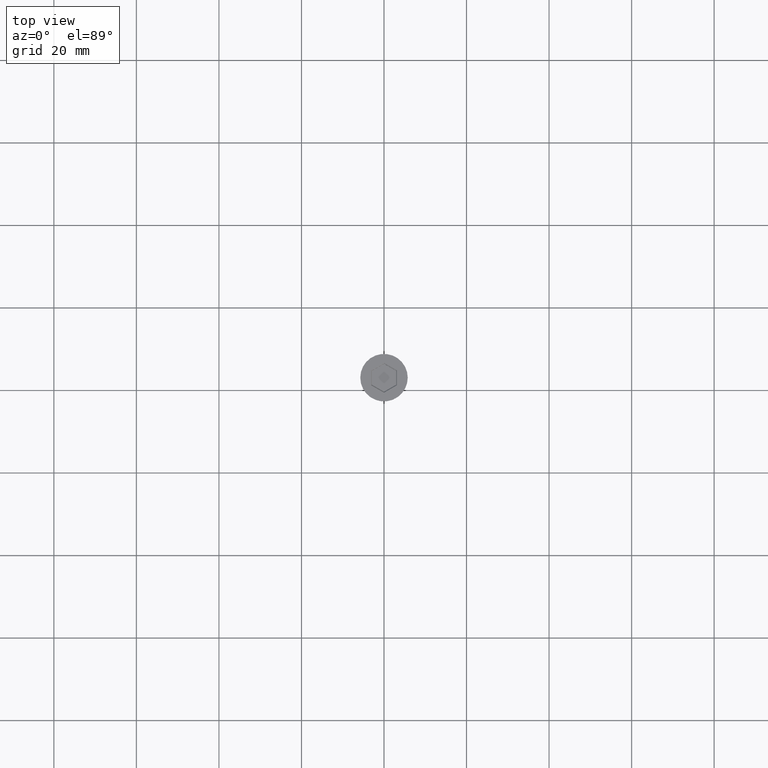
[diagram: clean part render]
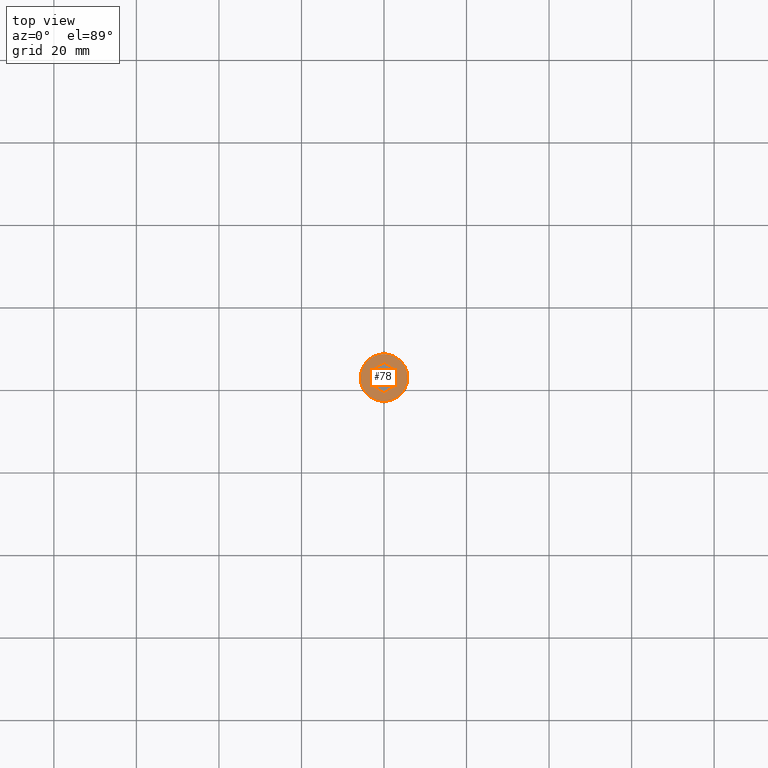
[diagram: same view with one face highlighted and labeled with its STEP entity id]
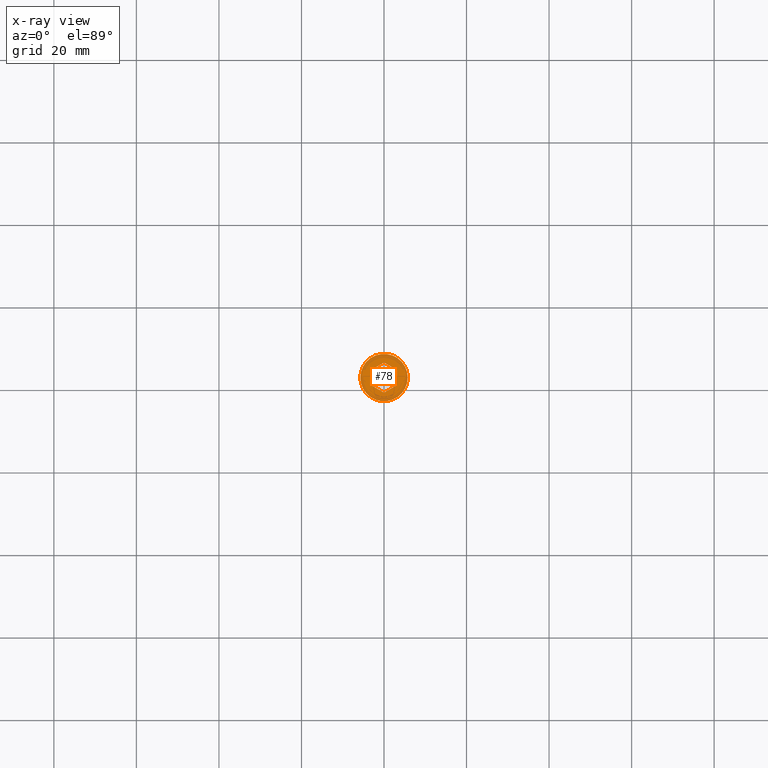
[diagram: x-ray of the same camera — body ghosted, the highlighted face saturated]
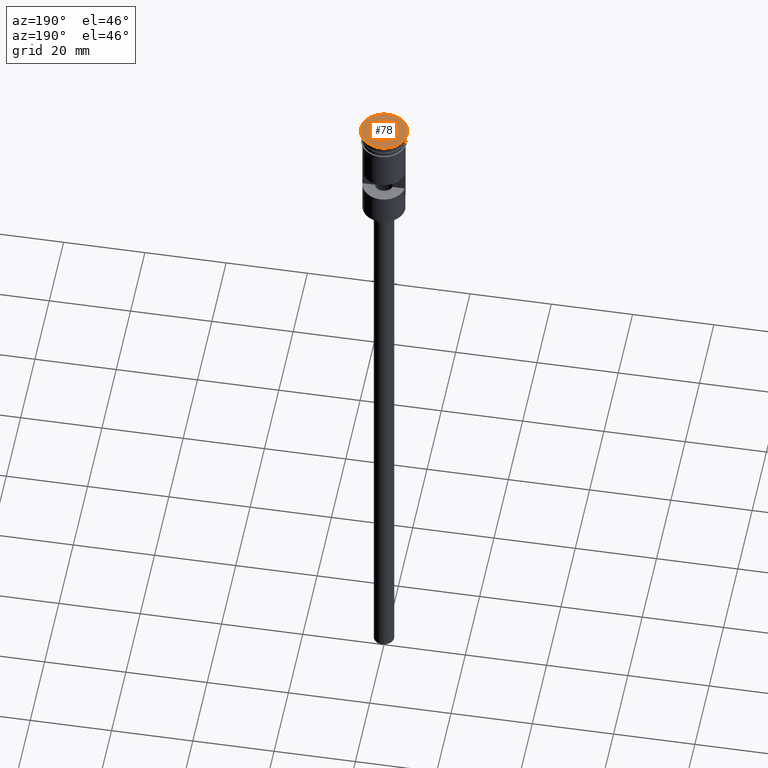
[diagram: same view with one face highlighted and labeled with its STEP entity id]
A machine part, top view. The second image highlights one B-rep face of the part: STEP entity #78.
The next image is the same camera in x-ray: the body ghosted, the highlighted face saturated — about 0% of this face is hidden behind the body in this view.
A second angle (auxiliary view) of the same face is appended — the face is thin or edge-on in the first view.
In plain terms, the highlighted planar face has unit normal (0, -0, 1).
Its self-contained STEP definition (entity closure, byte-faithful):
#10 = EDGE_CURVE ( 'NONE', #586, #905, #1591, .T. ) ;
#16 = FACE_BOUND ( 'NONE', #1208, .T. ) ;
#37 = CARTESIAN_POINT ( 'NONE',  ( 3.049999999999990052, 1.876388374866264863, 0.000000000000000000 ) ) ;
#62 = CARTESIAN_POINT ( 'NONE',  ( 0.000000000000000000, 0.000000000000000000, 0.000000000000000000 ) ) ;
#78 = ADVANCED_FACE ( 'NONE', ( #16, #1265 ), #1245, .T. ) ;
#129 = DIRECTION ( 'NONE',  ( -0.000000000000000000, -0.000000000000000000, 1.000000000000000000 ) ) ;
#135 = VECTOR ( 'NONE', #692, 1000.000000000000000 ) ;
#141 = DIRECTION ( 'NONE',  ( 0.8660254037844387076, -0.4999999999999998890, 0.000000000000000000 ) ) ;
#145 = CARTESIAN_POINT ( 'NONE',  ( -4.546348829811041408E-16, -3.637306695894617636, 0.000000000000000000 ) ) ;
#166 = DIRECTION ( 'NONE',  ( -0.8660254037844387076, -0.4999999999999998890, 0.000000000000000000 ) ) ;
#189 = CARTESIAN_POINT ( 'NONE',  ( -3.149999999999978595, -1.818653347947308818, 0.000000000000000000 ) ) ;
#239 = CARTESIAN_POINT ( 'NONE',  ( 3.149999999999978151, -1.703183294109396284, 0.000000000000000000 ) ) ;
#243 = VERTEX_POINT ( 'NONE', #1477 ) ;
#249 = EDGE_LOOP ( 'NONE', ( #1037, #845 ) ) ;
#276 = EDGE_CURVE ( 'NONE', #726, #402, #1485, .T. ) ;
#288 = AXIS2_PLACEMENT_3D ( 'NONE', #62, #129, #1052 ) ;
#309 = ORIENTED_EDGE ( 'NONE', *, *, #771, .T. ) ;
#325 = ORIENTED_EDGE ( 'NONE', *, *, #10, .T. ) ;
#402 = VERTEX_POINT ( 'NONE', #410 ) ;
#410 = CARTESIAN_POINT ( 'NONE',  ( 5.750000000000000000, 0.000000000000000000, 0.000000000000000000 ) ) ;
#422 = CIRCLE ( 'NONE', #1463, 5.750000000000000000 ) ;
#427 = CARTESIAN_POINT ( 'NONE',  ( -5.750000000000000000, 7.041719095097280880E-16, 0.000000000000000000 ) ) ;
#438 = DIRECTION ( 'NONE',  ( 1.000000000000000000, 0.000000000000000000, 0.000000000000000000 ) ) ;
#467 = EDGE_CURVE ( 'NONE', #477, #1574, #1369, .T. ) ;
#469 = DIRECTION ( 'NONE',  ( -0.8660254037844385966, 0.5000000000000001110, 0.000000000000000000 ) ) ;
#477 = VERTEX_POINT ( 'NONE', #1468 ) ;
#515 = CARTESIAN_POINT ( 'NONE',  ( 0.000000000000000000, 0.000000000000000000, 0.000000000000000000 ) ) ;
#586 = VERTEX_POINT ( 'NONE', #145 ) ;
#631 = DIRECTION ( 'NONE',  ( 0.000000000000000000, -0.000000000000000000, 1.000000000000000000 ) ) ;
#635 = CARTESIAN_POINT ( 'NONE',  ( -0.09999999999998934741, 3.579571668975661147, 0.000000000000000000 ) ) ;
#644 = VECTOR ( 'NONE', #469, 1000.000000000000114 ) ;
#692 = DIRECTION ( 'NONE',  ( 0.000000000000000000, 1.000000000000000000, 0.000000000000000000 ) ) ;
#726 = VERTEX_POINT ( 'NONE', #427 ) ;
#753 = DIRECTION ( 'NONE',  ( 0.8660254037844385966, 0.5000000000000001110, 0.000000000000000000 ) ) ;
#771 = EDGE_CURVE ( 'NONE', #905, #1409, #955, .T. ) ;
#779 = CARTESIAN_POINT ( 'NONE',  ( 0.09999999999998882005, -3.579571668975661591, 0.000000000000000000 ) ) ;
#811 = VECTOR ( 'NONE', #141, 1000.000000000000000 ) ;
#823 = CARTESIAN_POINT ( 'NONE',  ( 0.000000000000000000, 0.000000000000000000, 0.000000000000000000 ) ) ;
#845 = ORIENTED_EDGE ( 'NONE', *, *, #276, .T. ) ;
#850 = ORIENTED_EDGE ( 'NONE', *, *, #1521, .T. ) ;
#856 = CARTESIAN_POINT ( 'NONE',  ( -3.149999999999978595, 1.818653347947308374, 0.000000000000000000 ) ) ;
#857 = VECTOR ( 'NONE', #166, 1000.000000000000000 ) ;
#860 = ORIENTED_EDGE ( 'NONE', *, *, #1601, .T. ) ;
#905 = VERTEX_POINT ( 'NONE', #189 ) ;
#955 = LINE ( 'NONE', #1441, #135 ) ;
#1037 = ORIENTED_EDGE ( 'NONE', *, *, #1304, .T. ) ;
#1052 = DIRECTION ( 'NONE',  ( 1.000000000000000000, 0.000000000000000000, 0.000000000000000000 ) ) ;
#1058 = EDGE_CURVE ( 'NONE', #1574, #586, #1423, .T. ) ;
#1080 = CARTESIAN_POINT ( 'NONE',  ( -3.049999999999989608, -1.876388374866265085, 0.000000000000000000 ) ) ;
#1098 = ORIENTED_EDGE ( 'NONE', *, *, #467, .T. ) ;
#1168 = VECTOR ( 'NONE', #1475, 1000.000000000000000 ) ;
#1208 = EDGE_LOOP ( 'NONE', ( #325, #309, #860, #850, #1098, #1586 ) ) ;
#1245 = PLANE ( 'NONE',  #1438 ) ;
#1250 = LINE ( 'NONE', #37, #811 ) ;
#1260 = CARTESIAN_POINT ( 'NONE',  ( 3.149999999999978151, -1.818653347947309484, 0.000000000000000000 ) ) ;
#1265 = FACE_OUTER_BOUND ( 'NONE', #249, .T. ) ;
#1304 = EDGE_CURVE ( 'NONE', #402, #726, #422, .T. ) ;
#1306 = DIRECTION ( 'NONE',  ( -0.000000000000000000, -0.000000000000000000, 1.000000000000000000 ) ) ;
#1369 = LINE ( 'NONE', #239, #1168 ) ;
#1383 = LINE ( 'NONE', #635, #1464 ) ;
#1409 = VERTEX_POINT ( 'NONE', #856 ) ;
#1423 = LINE ( 'NONE', #779, #857 ) ;
#1438 = AXIS2_PLACEMENT_3D ( 'NONE', #515, #631, #1518 ) ;
#1441 = CARTESIAN_POINT ( 'NONE',  ( -3.149999999999978595, 1.703183294109395840, 0.000000000000000000 ) ) ;
#1463 = AXIS2_PLACEMENT_3D ( 'NONE', #823, #1306, #438 ) ;
#1464 = VECTOR ( 'NONE', #753, 1000.000000000000114 ) ;
#1468 = CARTESIAN_POINT ( 'NONE',  ( 3.149999999999979039, 1.818653347947308596, 0.000000000000000000 ) ) ;
#1475 = DIRECTION ( 'NONE',  ( -2.546295930062981593E-16, -1.000000000000000000, 0.000000000000000000 ) ) ;
#1477 = CARTESIAN_POINT ( 'NONE',  ( -3.095704393061636416E-16, 3.637306695894617192, 0.000000000000000000 ) ) ;
#1485 = CIRCLE ( 'NONE', #288, 5.750000000000000000 ) ;
#1518 = DIRECTION ( 'NONE',  ( 1.000000000000000000, 0.000000000000000000, 0.000000000000000000 ) ) ;
#1521 = EDGE_CURVE ( 'NONE', #243, #477, #1250, .T. ) ;
#1574 = VERTEX_POINT ( 'NONE', #1260 ) ;
#1586 = ORIENTED_EDGE ( 'NONE', *, *, #1058, .T. ) ;
#1591 = LINE ( 'NONE', #1080, #644 ) ;
#1601 = EDGE_CURVE ( 'NONE', #1409, #243, #1383, .T. ) ;